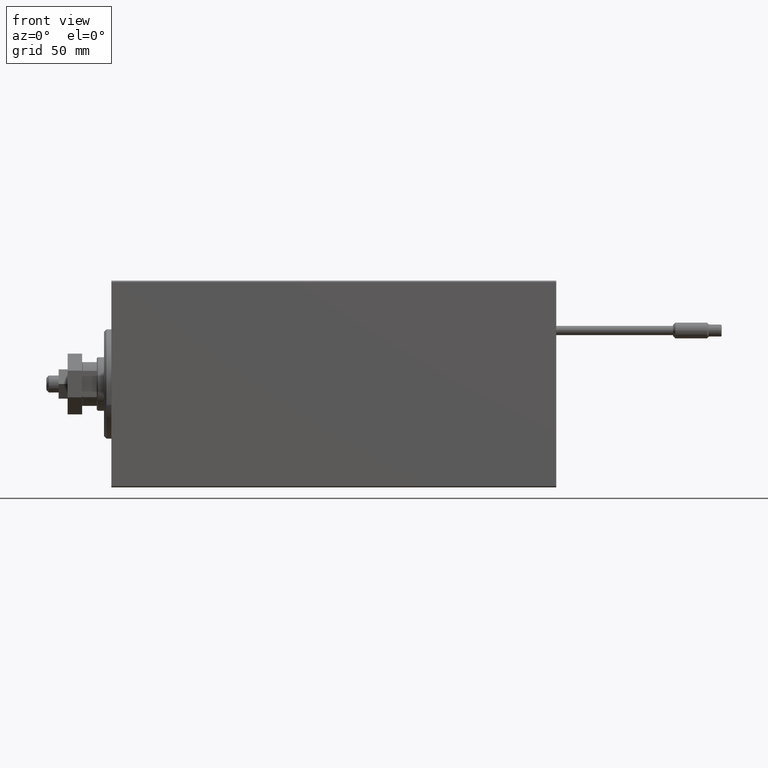
[diagram: clean part render]
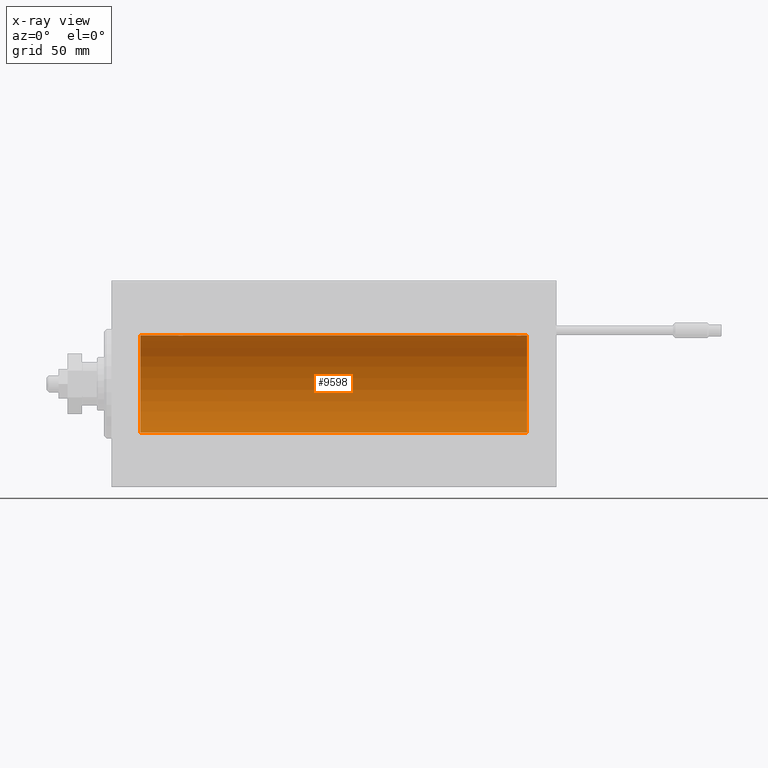
[diagram: x-ray — body ghosted, one internal face saturated and labeled with its STEP entity id]
A machine part, front view, then the same camera in x-ray: the body is ghosted and one INTERNAL B-rep face — a face not visible from any outside direction — is saturated and labeled: STEP entity #9598.
In plain terms, the highlighted cylindrical surface (partial cylindrical patch) has radius 20 mm, axis along (-1, -0, -0).
Its self-contained STEP definition (entity closure, byte-faithful):
#1274 = CARTESIAN_POINT ( 'NONE',  ( 165.7651054539801123, 1.003547732426790073, 19.97510079925437410 ) ) ;
#1519 = CARTESIAN_POINT ( 'NONE',  ( 169.2972134305669556, 0.8872481584516725972, 19.98067755938510714 ) ) ;
#1530 = LINE ( 'NONE', #21993, #7017 ) ;
#1957 = CARTESIAN_POINT ( 'NONE',  ( 30.49999999999998934, 0.1322335637814726905, 19.99999999999999645 ) ) ;
#2319 = CARTESIAN_POINT ( 'NONE',  ( 171.0000000000000000, 0.000000000000000000, 20.00000000000000000 ) ) ;
#3733 = DIRECTION ( 'NONE',  ( 0.000000000000000000, 0.000000000000000000, 1.000000000000000000 ) ) ;
#4233 = CARTESIAN_POINT ( 'NONE',  ( 27.61403810544162951, 1.797847595792757769, 19.91909332229799290 ) ) ;
#5212 = EDGE_CURVE ( 'NONE', #24616, #6872, #11000, .T. ) ;
#5622 = CARTESIAN_POINT ( 'NONE',  ( 165.7024609887284043, 0.8865903856744312694, 19.98070694681039328 ) ) ;
#5811 = CARTESIAN_POINT ( 'NONE',  ( 30.23576365127895471, 1.002099838626313133, 19.97517568592526516 ) ) ;
#5879 = CARTESIAN_POINT ( 'NONE',  ( 165.9926135845601038, 1.321069663197669497, 19.95654117037011943 ) ) ;
#6570 = CARTESIAN_POINT ( 'NONE',  ( 30.48701494615325203, 0.2622407139811110399, 19.99868965376114716 ) ) ;
#6818 = CARTESIAN_POINT ( 'NONE',  ( 30.50000000000000000, -9.453669475664189070E-16, 20.00000000000000000 ) ) ;
#6872 = VERTEX_POINT ( 'NONE', #26900 ) ;
#7017 = VECTOR ( 'NONE', #20986, 1000.000000000000000 ) ;
#7064 = CARTESIAN_POINT ( 'NONE',  ( 29.72950112230633124, 1.598854313793179660, 19.93684595445884256 ) ) ;
#7576 = CARTESIAN_POINT ( 'NONE',  ( 29.02513908454999125, 1.947330458682948739, 19.90522393307485061 ) ) ;
#8067 = CARTESIAN_POINT ( 'NONE',  ( 28.37018818709294266, 2.000047251570880924, 19.89974399317116038 ) ) ;
#8109 = EDGE_CURVE ( 'NONE', #41803, #27746, #1530, .T. ) ;
#8697 = CARTESIAN_POINT ( 'NONE',  ( 165.5642685113271000, 0.5196544277756655061, 19.99365919015135518 ) ) ;
#8952 = CARTESIAN_POINT ( 'NONE',  ( 168.5064575907383357, 1.747830109444734159, 19.92373272380677207 ) ) ;
#9200 = LINE ( 'NONE', #47323, #48715 ) ;
#9453 = CARTESIAN_POINT ( 'NONE',  ( 166.4970277321504852, 1.735228749583813679, 19.92471474456649005 ) ) ;
#9598 = ADVANCED_FACE ( 'NONE', ( #22692 ), #22440, .F. ) ;
#9708 = CARTESIAN_POINT ( 'NONE',  ( 168.0251390845500055, 1.947330458682945409, 19.90522393307485061 ) ) ;
#10659 = EDGE_CURVE ( 'NONE', #27993, #43947, #11701, .T. ) ;
#11000 = B_SPLINE_CURVE_WITH_KNOTS ( 'NONE', 3,
 ( #20975, #36581, #28139, #24819, #43744, #1519, #43998, #31974, #40661, #29147, #8952, #9708, #25317, #20727, #13295, #40917, #24568, #32733, #9453, #13042, #28649, #5879, #36331, #1274, #5622, #35814, #8697, #16879, #48109, #32482 ),
 .UNSPECIFIED., .F., .F.,
 ( 4, 2, 2, 2, 2, 2, 2, 2, 2, 2, 2, 2, 2, 2, 4 ),
 ( 6.256030733202064911E-18, 0.0003910512220831412178, 0.0007821024441662762557, 0.001173153666249411239, 0.001564204888332546223, 0.002346307332498815974, 0.003128409776665085941, 0.003519460998748179508, 0.003910512220831273075, 0.004301563442914366209, 0.004692614664997459342, 0.005083665887080552476, 0.005474717109163646477, 0.005865768331246739610, 0.006256819553329832743 ),
 .UNSPECIFIED. ) ;
#11701 = LINE ( 'NONE', #46001, #17702 ) ;
#11833 = CARTESIAN_POINT ( 'NONE',  ( 169.4999999999999716, 6.438096668033870730E-15, 20.00000000000000000 ) ) ;
#13042 = CARTESIAN_POINT ( 'NONE',  ( 166.2803972465025026, 1.590453176650897360, 19.93679350243184700 ) ) ;
#13114 = EDGE_CURVE ( 'NONE', #37650, #27993, #22497, .T. ) ;
#13295 = CARTESIAN_POINT ( 'NONE',  ( 167.2375858217999962, 1.987020435121064965, 19.90106552791689154 ) ) ;
#13968 = ORIENTED_EDGE ( 'NONE', *, *, #5212, .T. ) ;
#14750 = DIRECTION ( 'NONE',  ( 0.000000000000000000, 0.000000000000000000, 1.000000000000000000 ) ) ;
#14842 = ORIENTED_EDGE ( 'NONE', *, *, #33425, .T. ) ;
#15281 = DIRECTION ( 'NONE',  ( -1.000000000000000000, -0.000000000000000000, -0.000000000000000000 ) ) ;
#15744 = CARTESIAN_POINT ( 'NONE',  ( 26.70246098872837592, 0.8865903856744279388, 19.98070694681038972 ) ) ;
#15991 = CARTESIAN_POINT ( 'NONE',  ( 28.23758582179998911, 1.987020435121066742, 19.90106552791689509 ) ) ;
#16747 = ORIENTED_EDGE ( 'NONE', *, *, #17285, .T. ) ;
#16879 = CARTESIAN_POINT ( 'NONE',  ( 165.5130870798855085, 0.2631998640366421394, 19.99867931558985745 ) ) ;
#17285 = EDGE_CURVE ( 'NONE', #43947, #27746, #43306, .T. ) ;
#17702 = VECTOR ( 'NONE', #15281, 1000.000000000000000 ) ;
#18824 = CARTESIAN_POINT ( 'NONE',  ( 27.49702773215046392, 1.735228749583825225, 19.92471474456649005 ) ) ;
#20227 = VERTEX_POINT ( 'NONE', #25708 ) ;
#20419 = EDGE_LOOP ( 'NONE', ( #35013, #32915, #37577, #13968, #14842, #39726, #27333, #16747 ) ) ;
#20727 = CARTESIAN_POINT ( 'NONE',  ( 167.3701881870929356, 2.000047251570877371, 19.89974399317116038 ) ) ;
#20975 = CARTESIAN_POINT ( 'NONE',  ( 169.4999999999999716, 6.438096668033870730E-15, 20.00000000000000000 ) ) ;
#20986 = DIRECTION ( 'NONE',  ( -1.000000000000000000, -0.000000000000000000, -0.000000000000000000 ) ) ;
#21124 = VECTOR ( 'NONE', #36883, 1000.000000000000000 ) ;
#21413 = CARTESIAN_POINT ( 'NONE',  ( 30.09059733457551999, 1.219458756546268674, 19.96308513509966787 ) ) ;
#21993 = CARTESIAN_POINT ( 'NONE',  ( 171.0000000000000000, 2.449293598294706513E-15, -20.00000000000000000 ) ) ;
#21994 = DIRECTION ( 'NONE',  ( -1.000000000000000000, 0.000000000000000000, 0.000000000000000000 ) ) ;
#22173 = CARTESIAN_POINT ( 'NONE',  ( 30.43615228383326610, 0.5179893069484617918, 19.99370013622814213 ) ) ;
#22418 = CARTESIAN_POINT ( 'NONE',  ( 30.00615770380712988, 1.322305185229305735, 19.95645382900617548 ) ) ;
#22440 = CYLINDRICAL_SURFACE ( 'NONE', #23456, 20.00000000000000000 ) ;
#22497 = B_SPLINE_CURVE_WITH_KNOTS ( 'NONE', 3,
 ( #6818, #1957, #6570, #22173, #30085, #49548, #5811, #21413, #22418, #7064, #47214, #7576, #43113, #8067, #15991, #42099, #27011, #4233, #18824, #23181, #31342, #46967, #22672, #27514, #15744, #31595, #38267, #22931, #23678, #38529 ),
 .UNSPECIFIED., .F., .F.,
 ( 4, 2, 2, 2, 2, 2, 2, 2, 2, 2, 2, 2, 2, 2, 4 ),
 ( 1.491064056086547960E-18, 0.0003910512220831125949, 0.0007821024441662236719, 0.001173153666249334695, 0.001564204888332445826, 0.002346307332498667655, 0.003128409776664889917, 0.003519460998748006036, 0.003910512220831123022, 0.004301563442914238707, 0.004692614664997354391, 0.005083665887080470944, 0.005474717109163585761, 0.005865768331246702313, 0.006256819553329818866 ),
 .UNSPECIFIED. ) ;
#22672 = CARTESIAN_POINT ( 'NONE',  ( 26.90992932310326680, 1.220099331833893963, 19.96304379627741099 ) ) ;
#22692 = FACE_OUTER_BOUND ( 'NONE', #20419, .T. ) ;
#22931 = CARTESIAN_POINT ( 'NONE',  ( 26.51308707988552982, 0.2631998640366418063, 19.99867931558985745 ) ) ;
#23181 = CARTESIAN_POINT ( 'NONE',  ( 27.28039724650257014, 1.590453176650910017, 19.93679350243183990 ) ) ;
#23367 = DIRECTION ( 'NONE',  ( -1.000000000000000000, 0.000000000000000000, 0.000000000000000000 ) ) ;
#23456 = AXIS2_PLACEMENT_3D ( 'NONE', #38554, #42640, #14750 ) ;
#23678 = CARTESIAN_POINT ( 'NONE',  ( 26.50000000000000711, 0.1305706983324430859, 20.00000000000000355 ) ) ;
#24568 = CARTESIAN_POINT ( 'NONE',  ( 166.8562886936015275, 1.898109641280497417, 19.90978941500366872 ) ) ;
#24616 = VERTEX_POINT ( 'NONE', #11833 ) ;
#24819 = CARTESIAN_POINT ( 'NONE',  ( 169.4361522838332803, 0.5179893069484673429, 19.99370013622814923 ) ) ;
#25317 = CARTESIAN_POINT ( 'NONE',  ( 167.7618015389743675, 1.999905101582715172, 19.89975827978156886 ) ) ;
#25708 = CARTESIAN_POINT ( 'NONE',  ( 171.0000000000000000, 0.000000000000000000, 20.00000000000000000 ) ) ;
#26900 = CARTESIAN_POINT ( 'NONE',  ( 165.4999999999999716, -1.553188236289650144E-23, 20.00000000000000000 ) ) ;
#27011 = CARTESIAN_POINT ( 'NONE',  ( 27.85628869360149906, 1.898109641280498083, 19.90978941500367583 ) ) ;
#27104 = CARTESIAN_POINT ( 'NONE',  ( 171.0000000000000000, 2.449293598294706513E-15, -20.00000000000000000 ) ) ;
#27333 = ORIENTED_EDGE ( 'NONE', *, *, #10659, .T. ) ;
#27514 = CARTESIAN_POINT ( 'NONE',  ( 26.76510545398016205, 1.003547732426802286, 19.97510079925437765 ) ) ;
#27643 = EDGE_CURVE ( 'NONE', #20227, #24616, #9200, .T. ) ;
#27746 = VERTEX_POINT ( 'NONE', #46269 ) ;
#27993 = VERTEX_POINT ( 'NONE', #44472 ) ;
#28139 = CARTESIAN_POINT ( 'NONE',  ( 169.4870149461532378, 0.2622407139811161469, 19.99868965376115071 ) ) ;
#28649 = CARTESIAN_POINT ( 'NONE',  ( 166.1793983491617155, 1.507796451871725063, 19.94330239452387588 ) ) ;
#29147 = CARTESIAN_POINT ( 'NONE',  ( 168.7295011223063455, 1.598854313793174997, 19.93684595445884611 ) ) ;
#30085 = CARTESIAN_POINT ( 'NONE',  ( 30.39765113166074073, 0.6450624715427593081, 19.98996196681220283 ) ) ;
#31342 = CARTESIAN_POINT ( 'NONE',  ( 27.17939834916166575, 1.507796451871720844, 19.94330239452387943 ) ) ;
#31595 = CARTESIAN_POINT ( 'NONE',  ( 26.60210312641135033, 0.6443418861413088283, 19.98998539619404724 ) ) ;
#31974 = CARTESIAN_POINT ( 'NONE',  ( 169.0905973345755058, 1.219458756546266898, 19.96308513509966787 ) ) ;
#32482 = CARTESIAN_POINT ( 'NONE',  ( 165.4999999999999716, -1.553188236289650144E-23, 20.00000000000000000 ) ) ;
#32733 = CARTESIAN_POINT ( 'NONE',  ( 166.6140381054415514, 1.797847595792759323, 19.91909332229798224 ) ) ;
#32915 = ORIENTED_EDGE ( 'NONE', *, *, #39425, .F. ) ;
#33425 = EDGE_CURVE ( 'NONE', #6872, #37650, #45057, .T. ) ;
#33454 = CIRCLE ( 'NONE', #35910, 20.00000000000000000 ) ;
#34363 = DIRECTION ( 'NONE',  ( 0.000000000000000000, 0.000000000000000000, 1.000000000000000000 ) ) ;
#35013 = ORIENTED_EDGE ( 'NONE', *, *, #8109, .F. ) ;
#35128 = CARTESIAN_POINT ( 'NONE',  ( 12.00000000000001066, 0.000000000000000000, 20.00000000000000000 ) ) ;
#35814 = CARTESIAN_POINT ( 'NONE',  ( 165.6021031264113503, 0.6443418861413128251, 19.98998539619404724 ) ) ;
#35910 = AXIS2_PLACEMENT_3D ( 'NONE', #49488, #23367, #34363 ) ;
#36331 = CARTESIAN_POINT ( 'NONE',  ( 165.9099293231032561, 1.220099331833881973, 19.96304379627741099 ) ) ;
#36581 = CARTESIAN_POINT ( 'NONE',  ( 169.4999999999999432, 0.1322335637814731624, 19.99999999999999645 ) ) ;
#36883 = DIRECTION ( 'NONE',  ( -1.000000000000000000, -0.000000000000000000, -0.000000000000000000 ) ) ;
#37577 = ORIENTED_EDGE ( 'NONE', *, *, #27643, .T. ) ;
#37650 = VERTEX_POINT ( 'NONE', #44679 ) ;
#38267 = CARTESIAN_POINT ( 'NONE',  ( 26.56426851132708222, 0.5196544277756667274, 19.99365919015135873 ) ) ;
#38416 = AXIS2_PLACEMENT_3D ( 'NONE', #42870, #21994, #3733 ) ;
#38529 = CARTESIAN_POINT ( 'NONE',  ( 26.50000000000000355, -1.552596590610734385E-23, 20.00000000000000000 ) ) ;
#38554 = CARTESIAN_POINT ( 'NONE',  ( 171.0000000000000000, 0.000000000000000000, 0.000000000000000000 ) ) ;
#39425 = EDGE_CURVE ( 'NONE', #20227, #41803, #33454, .T. ) ;
#39726 = ORIENTED_EDGE ( 'NONE', *, *, #13114, .T. ) ;
#40661 = CARTESIAN_POINT ( 'NONE',  ( 169.0061577038071050, 1.322305185229299740, 19.95645382900617548 ) ) ;
#40917 = CARTESIAN_POINT ( 'NONE',  ( 166.9810052581388788, 1.935912154109689531, 19.90610216711451130 ) ) ;
#41803 = VERTEX_POINT ( 'NONE', #27104 ) ;
#42099 = CARTESIAN_POINT ( 'NONE',  ( 27.98100525813890371, 1.935912154109691308, 19.90610216711450775 ) ) ;
#42640 = DIRECTION ( 'NONE',  ( -1.000000000000000000, -0.000000000000000000, -0.000000000000000000 ) ) ;
#42870 = CARTESIAN_POINT ( 'NONE',  ( 12.00000000000001066, 0.000000000000000000, 0.000000000000000000 ) ) ;
#43113 = CARTESIAN_POINT ( 'NONE',  ( 28.76180153897438174, 1.999905101582716727, 19.89975827978156531 ) ) ;
#43306 = CIRCLE ( 'NONE', #38416, 20.00000000000000000 ) ;
#43744 = CARTESIAN_POINT ( 'NONE',  ( 169.3976511316607514, 0.6450624715427597522, 19.98996196681220994 ) ) ;
#43947 = VERTEX_POINT ( 'NONE', #35128 ) ;
#43998 = CARTESIAN_POINT ( 'NONE',  ( 169.2357636512789725, 1.002099838626312023, 19.97517568592526516 ) ) ;
#44472 = CARTESIAN_POINT ( 'NONE',  ( 26.50000000000000355, -1.552596590610734385E-23, 20.00000000000000000 ) ) ;
#44679 = CARTESIAN_POINT ( 'NONE',  ( 30.50000000000000000, -9.453669475664189070E-16, 20.00000000000000000 ) ) ;
#45057 = LINE ( 'NONE', #2319, #21124 ) ;
#46001 = CARTESIAN_POINT ( 'NONE',  ( 171.0000000000000000, 0.000000000000000000, 20.00000000000000000 ) ) ;
#46269 = CARTESIAN_POINT ( 'NONE',  ( 12.00000000000001066, 2.449293598294706513E-15, -20.00000000000000000 ) ) ;
#46967 = CARTESIAN_POINT ( 'NONE',  ( 26.99261358456011806, 1.321069663197663724, 19.95654117037012298 ) ) ;
#47214 = CARTESIAN_POINT ( 'NONE',  ( 29.50645759073829666, 1.747830109444738822, 19.92373272380676852 ) ) ;
#47323 = CARTESIAN_POINT ( 'NONE',  ( 171.0000000000000000, 0.000000000000000000, 20.00000000000000000 ) ) ;
#47588 = DIRECTION ( 'NONE',  ( -1.000000000000000000, -0.000000000000000000, -0.000000000000000000 ) ) ;
#48109 = CARTESIAN_POINT ( 'NONE',  ( 165.4999999999999432, 0.1305706983324443071, 19.99999999999999645 ) ) ;
#48715 = VECTOR ( 'NONE', #47588, 1000.000000000000000 ) ;
#49488 = CARTESIAN_POINT ( 'NONE',  ( 171.0000000000000000, 0.000000000000000000, 0.000000000000000000 ) ) ;
#49548 = CARTESIAN_POINT ( 'NONE',  ( 30.29721343056696270, 0.8872481584516728192, 19.98067755938509293 ) ) ;